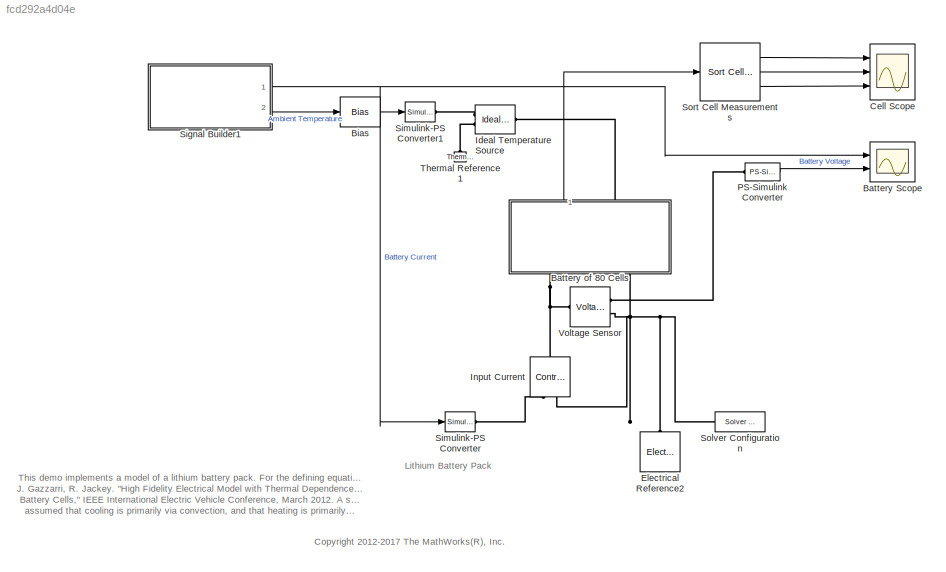
MODEL slx_fcd292a4d04e
KIND model
CONFIG AbsTol = auto
CONFIG EnableMultiTasking = on
CONFIG FixedStep = auto
CONFIG MaxStep = 600
CONFIG MinStep = auto
CONFIG PreLoadFcn = ssc_lithium_battery_80Cells_ini\n
CONFIG RelTol = 1e-3
CONFIG SampleTimeConstraint = Unconstrained
CONFIG Solver = ode15s
CONFIG SolverName = ode15s
CONFIG StartTime = 0.0
CONFIG StopTime = 40000
BLOCK [Scope] Battery Scope
  NumInputPorts = 2
  Ports = [2]
  ScopeSpecificationString = Simulink.scopes.TimeScopeBlockCfg('CurrentConfiguration', extmgr.ConfigurationSet(extmgr.Configuration('Core','General UI',true),extmgr.Configuration('Core','Source UI',true),extmgr.Configuration('Sources','WiredSimulink',true,'DataLoggingVariableName','ScopeData1','DataLoggingSaveFormat','StructureWithTime','DataLoggingDecimation','1','DataLoggingDecimateData',true),extmgr.Configuration('Visuals'...<+2446ch>
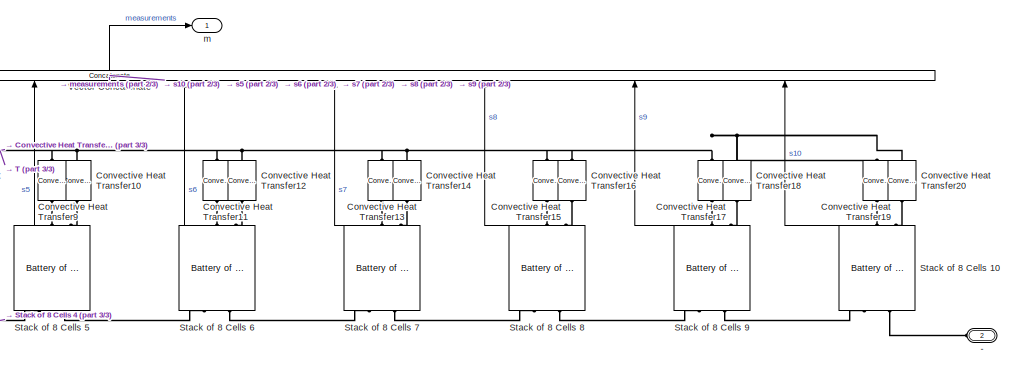
[diagram: Battery of 80 Cells - part 1/3, right side, full height]
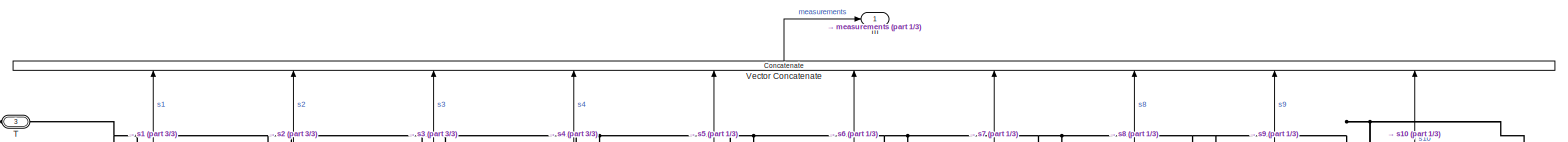
[diagram: Battery of 80 Cells - part 2/3, full width, top band]
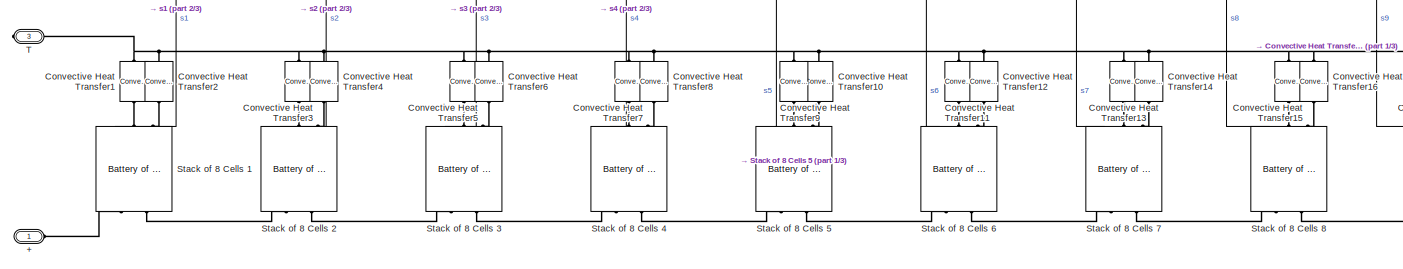
[diagram: Battery of 80 Cells - part 3/3, full width, middle band]
BLOCK [SubSystem] Battery of 80 Cells
  Ports = [0, 1, 0, 0, 0, 2, 1]
  RequestExecContextInheritance = off
  Variant = off
BLOCK [PMIOPort] Battery of 80 Cells/+
  Port = 1
  Side = Left
BLOCK [PMIOPort] Battery of 80 Cells/-
  Port = 2
  Side = Left
BLOCK [Reference] Battery of 80 Cells/Convective Heat Transfer1  REF=fl_lib/Thermal/Thermal Elements/Convective Heat
Transfer
  Ports = [0, 0, 0, 0, 0, 1, 1]
  SourceBlock = fl_lib/Thermal/Thermal Elements/Convective Heat\nTransfer
  SourceProductBaseCode = SS
  SourceProductName = Simscape
  SourceType = Convective Heat\nTransfer
BLOCK [Reference] Battery of 80 Cells/Convective Heat Transfer10  REF=fl_lib/Thermal/Thermal Elements/Convective Heat
Transfer
  Ports = [0, 0, 0, 0, 0, 1, 1]
  SourceBlock = fl_lib/Thermal/Thermal Elements/Convective Heat\nTransfer
  SourceProductBaseCode = SS
  SourceProductName = Simscape
  SourceType = Convective Heat\nTransfer
BLOCK [Reference] Battery of 80 Cells/Convective Heat Transfer11  REF=fl_lib/Thermal/Thermal Elements/Convective Heat
Transfer
  Ports = [0, 0, 0, 0, 0, 1, 1]
  SourceBlock = fl_lib/Thermal/Thermal Elements/Convective Heat\nTransfer
  SourceProductBaseCode = SS
  SourceProductName = Simscape
  SourceType = Convective Heat\nTransfer
BLOCK [Reference] Battery of 80 Cells/Convective Heat Transfer12  REF=fl_lib/Thermal/Thermal Elements/Convective Heat
Transfer
  Ports = [0, 0, 0, 0, 0, 1, 1]
  SourceBlock = fl_lib/Thermal/Thermal Elements/Convective Heat\nTransfer
  SourceProductBaseCode = SS
  SourceProductName = Simscape
  SourceType = Convective Heat\nTransfer
BLOCK [Reference] Battery of 80 Cells/Convective Heat Transfer13  REF=fl_lib/Thermal/Thermal Elements/Convective Heat
Transfer
  Ports = [0, 0, 0, 0, 0, 1, 1]
  SourceBlock = fl_lib/Thermal/Thermal Elements/Convective Heat\nTransfer
  SourceProductBaseCode = SS
  SourceProductName = Simscape
  SourceType = Convective Heat\nTransfer
BLOCK [Reference] Battery of 80 Cells/Convective Heat Transfer14  REF=fl_lib/Thermal/Thermal Elements/Convective Heat
Transfer
  Ports = [0, 0, 0, 0, 0, 1, 1]
  SourceBlock = fl_lib/Thermal/Thermal Elements/Convective Heat\nTransfer
  SourceProductBaseCode = SS
  SourceProductName = Simscape
  SourceType = Convective Heat\nTransfer
BLOCK [Reference] Battery of 80 Cells/Convective Heat Transfer15  REF=fl_lib/Thermal/Thermal Elements/Convective Heat
Transfer
  Ports = [0, 0, 0, 0, 0, 1, 1]
  SourceBlock = fl_lib/Thermal/Thermal Elements/Convective Heat\nTransfer
  SourceProductBaseCode = SS
  SourceProductName = Simscape
  SourceType = Convective Heat\nTransfer
BLOCK [Reference] Battery of 80 Cells/Convective Heat Transfer16  REF=fl_lib/Thermal/Thermal Elements/Convective Heat
Transfer
  Ports = [0, 0, 0, 0, 0, 1, 1]
  SourceBlock = fl_lib/Thermal/Thermal Elements/Convective Heat\nTransfer
  SourceProductBaseCode = SS
  SourceProductName = Simscape
  SourceType = Convective Heat\nTransfer
BLOCK [Reference] Battery of 80 Cells/Convective Heat Transfer17  REF=fl_lib/Thermal/Thermal Elements/Convective Heat
Transfer
  Ports = [0, 0, 0, 0, 0, 1, 1]
  SourceBlock = fl_lib/Thermal/Thermal Elements/Convective Heat\nTransfer
  SourceProductBaseCode = SS
  SourceProductName = Simscape
  SourceType = Convective Heat\nTransfer
BLOCK [Reference] Battery of 80 Cells/Convective Heat Transfer18  REF=fl_lib/Thermal/Thermal Elements/Convective Heat
Transfer
  Ports = [0, 0, 0, 0, 0, 1, 1]
  SourceBlock = fl_lib/Thermal/Thermal Elements/Convective Heat\nTransfer
  SourceProductBaseCode = SS
  SourceProductName = Simscape
  SourceType = Convective Heat\nTransfer
BLOCK [Reference] Battery of 80 Cells/Convective Heat Transfer19  REF=fl_lib/Thermal/Thermal Elements/Convective Heat
Transfer
  Ports = [0, 0, 0, 0, 0, 1, 1]
  SourceBlock = fl_lib/Thermal/Thermal Elements/Convective Heat\nTransfer
  SourceProductBaseCode = SS
  SourceProductName = Simscape
  SourceType = Convective Heat\nTransfer
BLOCK [Reference] Battery of 80 Cells/Convective Heat Transfer2  REF=fl_lib/Thermal/Thermal Elements/Convective Heat
Transfer
  Ports = [0, 0, 0, 0, 0, 1, 1]
  SourceBlock = fl_lib/Thermal/Thermal Elements/Convective Heat\nTransfer
  SourceProductBaseCode = SS
  SourceProductName = Simscape
  SourceType = Convective Heat\nTransfer
BLOCK [Reference] Battery of 80 Cells/Convective Heat Transfer20  REF=fl_lib/Thermal/Thermal Elements/Convective Heat
Transfer
  Ports = [0, 0, 0, 0, 0, 1, 1]
  SourceBlock = fl_lib/Thermal/Thermal Elements/Convective Heat\nTransfer
  SourceProductBaseCode = SS
  SourceProductName = Simscape
  SourceType = Convective Heat\nTransfer
BLOCK [Reference] Battery of 80 Cells/Convective Heat Transfer3  REF=fl_lib/Thermal/Thermal Elements/Convective Heat
Transfer
  Ports = [0, 0, 0, 0, 0, 1, 1]
  SourceBlock = fl_lib/Thermal/Thermal Elements/Convective Heat\nTransfer
  SourceProductBaseCode = SS
  SourceProductName = Simscape
  SourceType = Convective Heat\nTransfer
BLOCK [Reference] Battery of 80 Cells/Convective Heat Transfer4  REF=fl_lib/Thermal/Thermal Elements/Convective Heat
Transfer
  Ports = [0, 0, 0, 0, 0, 1, 1]
  SourceBlock = fl_lib/Thermal/Thermal Elements/Convective Heat\nTransfer
  SourceProductBaseCode = SS
  SourceProductName = Simscape
  SourceType = Convective Heat\nTransfer
BLOCK [Reference] Battery of 80 Cells/Convective Heat Transfer5  REF=fl_lib/Thermal/Thermal Elements/Convective Heat
Transfer
  Ports = [0, 0, 0, 0, 0, 1, 1]
  SourceBlock = fl_lib/Thermal/Thermal Elements/Convective Heat\nTransfer
  SourceProductBaseCode = SS
  SourceProductName = Simscape
  SourceType = Convective Heat\nTransfer
BLOCK [Reference] Battery of 80 Cells/Convective Heat Transfer6  REF=fl_lib/Thermal/Thermal Elements/Convective Heat
Transfer
  Ports = [0, 0, 0, 0, 0, 1, 1]
  SourceBlock = fl_lib/Thermal/Thermal Elements/Convective Heat\nTransfer
  SourceProductBaseCode = SS
  SourceProductName = Simscape
  SourceType = Convective Heat\nTransfer
BLOCK [Reference] Battery of 80 Cells/Convective Heat Transfer7  REF=fl_lib/Thermal/Thermal Elements/Convective Heat
Transfer
  Ports = [0, 0, 0, 0, 0, 1, 1]
  SourceBlock = fl_lib/Thermal/Thermal Elements/Convective Heat\nTransfer
  SourceProductBaseCode = SS
  SourceProductName = Simscape
  SourceType = Convective Heat\nTransfer
BLOCK [Reference] Battery of 80 Cells/Convective Heat Transfer8  REF=fl_lib/Thermal/Thermal Elements/Convective Heat
Transfer
  Ports = [0, 0, 0, 0, 0, 1, 1]
  SourceBlock = fl_lib/Thermal/Thermal Elements/Convective Heat\nTransfer
  SourceProductBaseCode = SS
  SourceProductName = Simscape
  SourceType = Convective Heat\nTransfer
BLOCK [Reference] Battery of 80 Cells/Convective Heat Transfer9  REF=fl_lib/Thermal/Thermal Elements/Convective Heat
Transfer
  Ports = [0, 0, 0, 0, 0, 1, 1]
  SourceBlock = fl_lib/Thermal/Thermal Elements/Convective Heat\nTransfer
  SourceProductBaseCode = SS
  SourceProductName = Simscape
  SourceType = Convective Heat\nTransfer
BLOCK [Reference] Battery of 80 Cells/Stack of 8 Cells 1  REF=LiBatteryBlocks/Battery of 8 Cells
  AttributesFormatString = %<ThisStackParams>
  Ports = [0, 1, 0, 0, 0, 2, 2]
  SourceBlock = LiBatteryBlocks/Battery of 8 Cells
  SourceType = Battery 8 Series Cells
BLOCK [Reference] Battery of 80 Cells/Stack of 8 Cells 10  REF=LiBatteryBlocks/Battery of 8 Cells
  AttributesFormatString = %<ThisStackParams>
  Ports = [0, 1, 0, 0, 0, 2, 2]
  SourceBlock = LiBatteryBlocks/Battery of 8 Cells
  SourceType = Battery 8 Series Cells
BLOCK [Reference] Battery of 80 Cells/Stack of 8 Cells 2  REF=LiBatteryBlocks/Battery of 8 Cells
  AttributesFormatString = %<ThisStackParams>
  Ports = [0, 1, 0, 0, 0, 2, 2]
  SourceBlock = LiBatteryBlocks/Battery of 8 Cells
  SourceType = Battery 8 Series Cells
BLOCK [Reference] Battery of 80 Cells/Stack of 8 Cells 3  REF=LiBatteryBlocks/Battery of 8 Cells
  AttributesFormatString = %<ThisStackParams>
  Ports = [0, 1, 0, 0, 0, 2, 2]
  SourceBlock = LiBatteryBlocks/Battery of 8 Cells
  SourceType = Battery 8 Series Cells
BLOCK [Reference] Battery of 80 Cells/Stack of 8 Cells 4  REF=LiBatteryBlocks/Battery of 8 Cells
  AttributesFormatString = %<ThisStackParams>
  Ports = [0, 1, 0, 0, 0, 2, 2]
  SourceBlock = LiBatteryBlocks/Battery of 8 Cells
  SourceType = Battery 8 Series Cells
BLOCK [Reference] Battery of 80 Cells/Stack of 8 Cells 5  REF=LiBatteryBlocks/Battery of 8 Cells
  AttributesFormatString = %<ThisStackParams>
  Ports = [0, 1, 0, 0, 0, 2, 2]
  SourceBlock = LiBatteryBlocks/Battery of 8 Cells
  SourceType = Battery 8 Series Cells
BLOCK [Reference] Battery of 80 Cells/Stack of 8 Cells 6  REF=LiBatteryBlocks/Battery of 8 Cells
  AttributesFormatString = %<ThisStackParams>
  Ports = [0, 1, 0, 0, 0, 2, 2]
  SourceBlock = LiBatteryBlocks/Battery of 8 Cells
  SourceType = Battery 8 Series Cells
BLOCK [Reference] Battery of 80 Cells/Stack of 8 Cells 7  REF=LiBatteryBlocks/Battery of 8 Cells
  AttributesFormatString = %<ThisStackParams>
  Ports = [0, 1, 0, 0, 0, 2, 2]
  SourceBlock = LiBatteryBlocks/Battery of 8 Cells
  SourceType = Battery 8 Series Cells
BLOCK [Reference] Battery of 80 Cells/Stack of 8 Cells 8  REF=LiBatteryBlocks/Battery of 8 Cells
  AttributesFormatString = %<ThisStackParams>
  Ports = [0, 1, 0, 0, 0, 2, 2]
  SourceBlock = LiBatteryBlocks/Battery of 8 Cells
  SourceType = Battery 8 Series Cells
BLOCK [Reference] Battery of 80 Cells/Stack of 8 Cells 9  REF=LiBatteryBlocks/Battery of 8 Cells
  AttributesFormatString = %<ThisStackParams>
  Ports = [0, 1, 0, 0, 0, 2, 2]
  SourceBlock = LiBatteryBlocks/Battery of 8 Cells
  SourceType = Battery 8 Series Cells
BLOCK [PMIOPort] Battery of 80 Cells/T
  Port = 3
  Side = Right
BLOCK [Concatenate] Battery of 80 Cells/Vector Concatenate
  NumInputs = 10
  Ports = [10, 1]
BLOCK [Outport] Battery of 80 Cells/m
  IconDisplay = Port number
BLOCK [Bias] Bias
  Bias = 273
  SaturateOnIntegerOverflow = off
BLOCK [Scope] Cell Scope
  NumInputPorts = 3
  Ports = [3]
  ScopeSpecificationString = Simulink.scopes.TimeScopeBlockCfg('CurrentConfiguration', extmgr.ConfigurationSet(extmgr.Configuration('Core','General UI',true),extmgr.Configuration('Core','Source UI',true),extmgr.Configuration('Sources','WiredSimulink',true,'DataLoggingSaveFormat','StructureWithTime','DataLoggingDecimation','1','DataLoggingDecimateData',true),extmgr.Configuration('Visuals','Time Domain',true,'SerializedDisplays...<+12872ch>
BLOCK [Reference] Electrical Reference2  REF=fl_lib/Electrical/Electrical Elements/Electrical Reference
  Ports = [0, 0, 0, 0, 0, 1]
  SourceBlock = fl_lib/Electrical/Electrical Elements/Electrical Reference
  SourceProductBaseCode = SS
  SourceProductName = Simscape
  SourceType = Electrical Reference
BLOCK [Reference] Ideal Temperature Source  REF=fl_lib/Thermal/Thermal Sources/Ideal Temperature
Source
  Ports = [0, 0, 0, 0, 0, 1, 2]
  SourceBlock = fl_lib/Thermal/Thermal Sources/Ideal Temperature\nSource
  SourceProductBaseCode = SS
  SourceProductName = Simscape
  SourceType = Ideal Temperature\nSource
BLOCK [Reference] Input Current  REF=fl_lib/Electrical/Electrical Sources/Controlled Current
Source
  Ports = [0, 0, 0, 0, 0, 1, 2]
  SourceBlock = fl_lib/Electrical/Electrical Sources/Controlled Current\nSource
  SourceProductBaseCode = SS
  SourceProductName = Simscape
  SourceType = Controlled Current\nSource
BLOCK [Reference] PS-Simulink Converter  REF=nesl_utility/PS-Simulink
Converter
  Ports = [0, 1, 0, 0, 0, 1]
  SourceBlock = nesl_utility/PS-Simulink\nConverter
  SourceProductBaseCode = SS
  SourceProductName = Simscape
  SourceType = PS-Simulink\nConverter
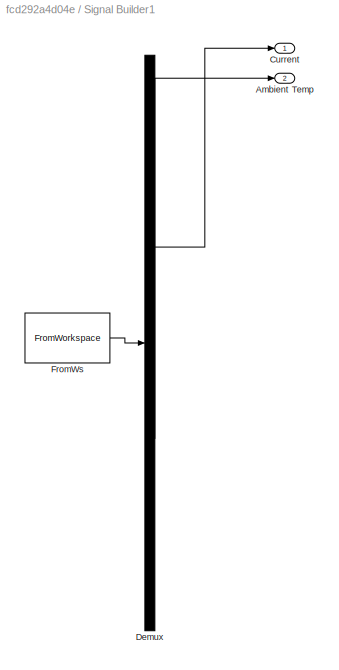
BLOCK [SubSystem] Signal Builder1
  ClipboardFcn = sigbuilder_block('clipboard');
  CloseFcn = sigbuilder_block('close');
  ContinueFcn = sigbuilder_block('continue');
  CopyFcn = sigbuilder_block('copy');
  DeleteFcn = sigbuilder_block('delete');
  LoadFcn = sigbuilder_block('load');
  MaskHideContents = on
  ModelCloseFcn = sigbuilder_block('modelClose');
  NameChangeFcn = sigbuilder_block('namechange');
  OpenFcn = sigbuilder_block('open',[28.5 123.75 755.25 399.75 ]);
  PauseFcn = sigbuilder_block('pause');
  Ports = [0, 2]
  PreSaveFcn = sigbuilder_block('preSave');
  RequestExecContextInheritance = off
  StartFcn = sigbuilder_block('start');
  StopFcn = sigbuilder_block('stop');
  Tag = STV Subsys
  Variant = off
BLOCK [Outport] Signal Builder1/Ambient Temp
  IconDisplay = Port number
  Port = 2
  Tag = STV Outport
BLOCK [Outport] Signal Builder1/Current
  IconDisplay = Port number
BLOCK [Demux] Signal Builder1/Demux
  Outputs = 2
  Ports = [1, 2]
  Tag = STV Demux
BLOCK [FromWorkspace] Signal Builder1/FromWs
  SampleTime = 0
  Tag = STV FromWs
  VariableName = tuvar
  ZeroCross = on
BLOCK [Reference] Simulink-PS Converter  REF=nesl_utility/Simulink-PS
Converter
  Ports = [1, 0, 0, 0, 0, 0, 1]
  SourceBlock = nesl_utility/Simulink-PS\nConverter
  SourceProductBaseCode = SS
  SourceProductName = Simscape
  SourceType = Simulink-PS\nConverter
BLOCK [Reference] Simulink-PS Converter1  REF=nesl_utility/Simulink-PS
Converter
  Ports = [1, 0, 0, 0, 0, 0, 1]
  SourceBlock = nesl_utility/Simulink-PS\nConverter
  SourceProductBaseCode = SS
  SourceProductName = Simscape
  SourceType = Simulink-PS\nConverter
BLOCK [Reference] Solver Configuration  REF=nesl_utility/Solver
Configuration
  Ports = [0, 0, 0, 0, 0, 0, 1]
  SourceBlock = nesl_utility/Solver\nConfiguration
  SourceProductBaseCode = SS
  SourceProductName = Simscape
  SourceType = Solver\nConfiguration
BLOCK [Reference] Sort Cell Measurements  REF=LiBatteryBlocks/Sort Cell
Measurements
  Ports = [1, 3]
  SourceBlock = LiBatteryBlocks/Sort Cell\nMeasurements
  SourceType = SubSystem
BLOCK [Reference] Thermal Reference1  REF=fl_lib/Thermal/Thermal Elements/Thermal Reference
  Ports = [0, 0, 0, 0, 0, 1]
  SourceBlock = fl_lib/Thermal/Thermal Elements/Thermal Reference
  SourceProductBaseCode = SS
  SourceProductName = Simscape
  SourceType = Thermal Reference
BLOCK [Reference] Voltage Sensor  REF=fl_lib/Electrical/Electrical Sensors/Voltage Sensor
  Ports = [0, 0, 0, 0, 0, 1, 2]
  SourceBlock = fl_lib/Electrical/Electrical Sensors/Voltage Sensor
  SourceProductBaseCode = SS
  SourceProductName = Simscape
  SourceType = Voltage Sensor
ANNOTATION (root): <copyright redacted>
ANNOTATION (root): Lithium Battery Pack
ANNOTATION (root): This demo implements a model of a lithium battery pack. For the defining equations of each cell and their validation, see T. Huria, M. Ceraolo, J. Gazzarri, R. Jackey. "High Fidelity Electrical Model with Thermal Dependence for Characterization and Simulation of High Power Lithium Battery Cells," IEEE International Electric Vehicle Conference, March 2012. A simple thermal model is used to model ba...<+130ch>
LINE Battery of 80 Cells/Stack of 8 Cells 10:1 -> Battery of 80 Cells/Vector Concatenate:10
LINE Battery of 80 Cells/Stack of 8 Cells 1:1 -> Battery of 80 Cells/Vector Concatenate:1
LINE Battery of 80 Cells/Stack of 8 Cells 2:1 -> Battery of 80 Cells/Vector Concatenate:2
LINE Battery of 80 Cells/Stack of 8 Cells 3:1 -> Battery of 80 Cells/Vector Concatenate:3
LINE Battery of 80 Cells/Stack of 8 Cells 4:1 -> Battery of 80 Cells/Vector Concatenate:4
LINE Battery of 80 Cells/Stack of 8 Cells 5:1 -> Battery of 80 Cells/Vector Concatenate:5
LINE Battery of 80 Cells/Stack of 8 Cells 6:1 -> Battery of 80 Cells/Vector Concatenate:6
LINE Battery of 80 Cells/Stack of 8 Cells 7:1 -> Battery of 80 Cells/Vector Concatenate:7
LINE Battery of 80 Cells/Stack of 8 Cells 8:1 -> Battery of 80 Cells/Vector Concatenate:8
LINE Battery of 80 Cells/Stack of 8 Cells 9:1 -> Battery of 80 Cells/Vector Concatenate:9
LINE Battery of 80 Cells/Vector Concatenate:1 -> Battery of 80 Cells/m:1
LINE Battery of 80 Cells:1 -> Sort Cell Measurements:1
LINE Bias:1 -> Simulink-PS Converter1:1
LINE PS-Simulink Converter:1 -> Battery Scope:2
NET Signal Builder1:1 -> Battery Scope:1, Simulink-PS Converter:1
LINE Signal Builder1:2 -> Bias:1
LINE Sort Cell Measurements:1 -> Cell Scope:1
LINE Sort Cell Measurements:2 -> Cell Scope:2
LINE Sort Cell Measurements:3 -> Cell Scope:3
PLINE Battery of 80 Cells/+:RConn1 -- Battery of 80 Cells/Stack of 8 Cells 1:LConn1
PLINE Battery of 80 Cells/-:RConn1 -- Battery of 80 Cells/Stack of 8 Cells 10:LConn2
PNET net1: Battery of 80 Cells/Convective Heat Transfer10:LConn1 -- Battery of 80 Cells/Convective Heat Transfer11:LConn1 -- Battery of 80 Cells/Convective Heat Transfer12:LConn1 -- Battery of 80 Cells/Convective Heat Transfer13:LConn1 -- Battery of 80 Cells/Convective Heat Transfer14:LConn1 -- Battery of 80 Cells/Convective Heat Transfer15:LConn1 -- Battery of 80 Cells/Convective Heat Transfer16:LConn1 -- Battery of 80 Cells/Convective Heat Transfer17:LConn1 -- Battery of 80 Cells/Convective Heat Transfer18:LConn1 -- Battery of 80 Cells/Convective Heat Transfer19:LConn1 -- Battery of 80 Cells/Convective Heat Transfer1:LConn1 -- Battery of 80 Cells/Convective Heat Transfer20:LConn1 -- Battery of 80 Cells/Convective Heat Transfer2:LConn1 -- Battery of 80 Cells/Convective Heat Transfer3:LConn1 -- Battery of 80 Cells/Convective Heat Transfer4:LConn1 -- Battery of 80 Cells/Convective Heat Transfer5:LConn1 -- Battery of 80 Cells/Convective Heat Transfer6:LConn1 -- Battery of 80 Cells/Convective Heat Transfer7:LConn1 -- Battery of 80 Cells/Convective Heat Transfer8:LConn1 -- Battery of 80 Cells/Convective Heat Transfer9:LConn1 -- Battery of 80 Cells/T:RConn1
PLINE Battery of 80 Cells/Convective Heat Transfer10:RConn1 -- Battery of 80 Cells/Stack of 8 Cells 5:RConn2
PLINE Battery of 80 Cells/Convective Heat Transfer11:RConn1 -- Battery of 80 Cells/Stack of 8 Cells 6:RConn1
PLINE Battery of 80 Cells/Convective Heat Transfer12:RConn1 -- Battery of 80 Cells/Stack of 8 Cells 6:RConn2
PLINE Battery of 80 Cells/Convective Heat Transfer13:RConn1 -- Battery of 80 Cells/Stack of 8 Cells 7:RConn1
PLINE Battery of 80 Cells/Convective Heat Transfer14:RConn1 -- Battery of 80 Cells/Stack of 8 Cells 7:RConn2
PLINE Battery of 80 Cells/Convective Heat Transfer15:RConn1 -- Battery of 80 Cells/Stack of 8 Cells 8:RConn1
PLINE Battery of 80 Cells/Convective Heat Transfer16:RConn1 -- Battery of 80 Cells/Stack of 8 Cells 8:RConn2
PLINE Battery of 80 Cells/Convective Heat Transfer17:RConn1 -- Battery of 80 Cells/Stack of 8 Cells 9:RConn1
PLINE Battery of 80 Cells/Convective Heat Transfer18:RConn1 -- Battery of 80 Cells/Stack of 8 Cells 9:RConn2
PLINE Battery of 80 Cells/Convective Heat Transfer19:RConn1 -- Battery of 80 Cells/Stack of 8 Cells 10:RConn1
PLINE Battery of 80 Cells/Convective Heat Transfer1:RConn1 -- Battery of 80 Cells/Stack of 8 Cells 1:RConn1
PLINE Battery of 80 Cells/Convective Heat Transfer20:RConn1 -- Battery of 80 Cells/Stack of 8 Cells 10:RConn2
PLINE Battery of 80 Cells/Convective Heat Transfer2:RConn1 -- Battery of 80 Cells/Stack of 8 Cells 1:RConn2
PLINE Battery of 80 Cells/Convective Heat Transfer3:RConn1 -- Battery of 80 Cells/Stack of 8 Cells 2:RConn1
PLINE Battery of 80 Cells/Convective Heat Transfer4:RConn1 -- Battery of 80 Cells/Stack of 8 Cells 2:RConn2
PLINE Battery of 80 Cells/Convective Heat Transfer5:RConn1 -- Battery of 80 Cells/Stack of 8 Cells 3:RConn1
PLINE Battery of 80 Cells/Convective Heat Transfer6:RConn1 -- Battery of 80 Cells/Stack of 8 Cells 3:RConn2
PLINE Battery of 80 Cells/Convective Heat Transfer7:RConn1 -- Battery of 80 Cells/Stack of 8 Cells 4:RConn1
PLINE Battery of 80 Cells/Convective Heat Transfer8:RConn1 -- Battery of 80 Cells/Stack of 8 Cells 4:RConn2
PLINE Battery of 80 Cells/Convective Heat Transfer9:RConn1 -- Battery of 80 Cells/Stack of 8 Cells 5:RConn1
PLINE Battery of 80 Cells/Stack of 8 Cells 10:LConn1 -- Battery of 80 Cells/Stack of 8 Cells 9:LConn2
PLINE Battery of 80 Cells/Stack of 8 Cells 1:LConn2 -- Battery of 80 Cells/Stack of 8 Cells 2:LConn1
PLINE Battery of 80 Cells/Stack of 8 Cells 2:LConn2 -- Battery of 80 Cells/Stack of 8 Cells 3:LConn1
PLINE Battery of 80 Cells/Stack of 8 Cells 3:LConn2 -- Battery of 80 Cells/Stack of 8 Cells 4:LConn1
PLINE Battery of 80 Cells/Stack of 8 Cells 4:LConn2 -- Battery of 80 Cells/Stack of 8 Cells 5:LConn1
PLINE Battery of 80 Cells/Stack of 8 Cells 5:LConn2 -- Battery of 80 Cells/Stack of 8 Cells 6:LConn1
PLINE Battery of 80 Cells/Stack of 8 Cells 6:LConn2 -- Battery of 80 Cells/Stack of 8 Cells 7:LConn1
PLINE Battery of 80 Cells/Stack of 8 Cells 7:LConn2 -- Battery of 80 Cells/Stack of 8 Cells 8:LConn1
PLINE Battery of 80 Cells/Stack of 8 Cells 8:LConn2 -- Battery of 80 Cells/Stack of 8 Cells 9:LConn1
PNET net2: Battery of 80 Cells:LConn1 -- Input Current:LConn1 -- Voltage Sensor:LConn1
PNET net3: Battery of 80 Cells:LConn2 -- Electrical Reference2:LConn1 -- Input Current:RConn2 -- Solver Configuration:RConn1 -- Voltage Sensor:RConn2
PLINE Battery of 80 Cells:RConn1 -- Ideal Temperature Source:LConn1
PLINE Ideal Temperature Source:RConn1 -- Simulink-PS Converter1:RConn1
PLINE Ideal Temperature Source:RConn2 -- Thermal Reference1:LConn1
PLINE Input Current:RConn1 -- Simulink-PS Converter:RConn1
PLINE PS-Simulink Converter:LConn1 -- Voltage Sensor:RConn1
note: NET lines group one-source signal fan-out (src -> all destinations, sorted); 1:1 wires keep LINE; PNET lines group multi-terminal physical nets as a canonical sorted terminal list (undirected conserving connections); 2-terminal nets keep the pairwise PLINE form
